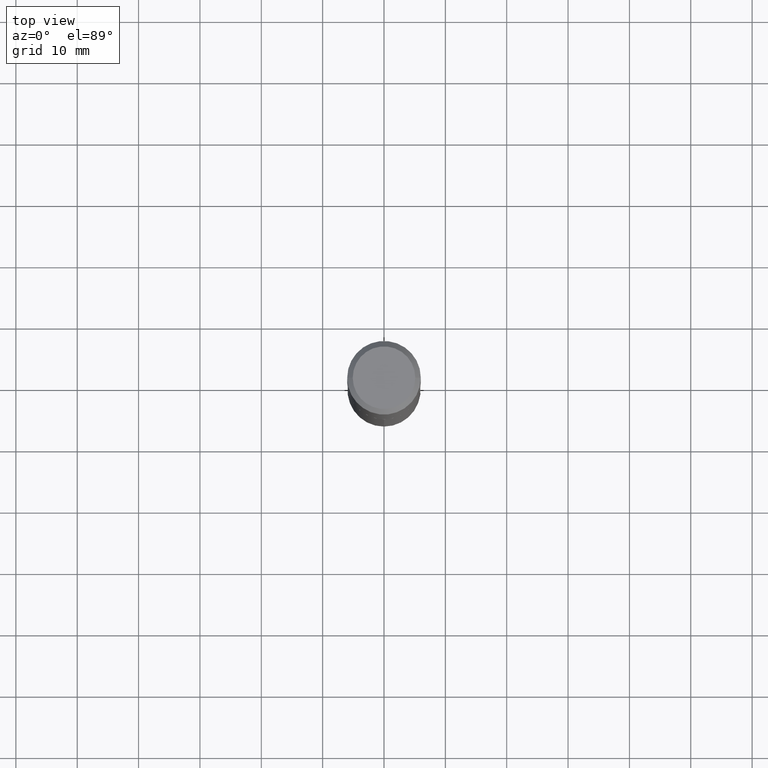
[diagram: clean part render]
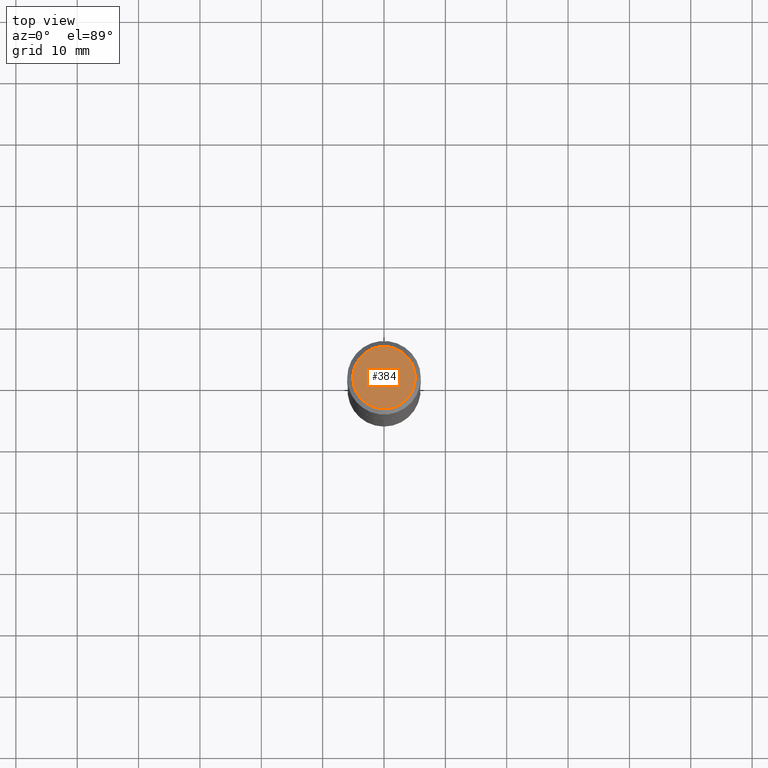
[diagram: same view with one face highlighted and labeled with its STEP entity id]
A machine part, top view. The second image highlights one B-rep face of the part: STEP entity #384.
In plain terms, the highlighted planar face has unit normal (0, -0, -1).
Its self-contained STEP definition (entity closure, byte-faithful):
#17 = ORIENTED_EDGE ( 'NONE', *, *, #175, .T. ) ;
#29 = AXIS2_PLACEMENT_3D ( 'NONE', #344, #233, #234 ) ;
#82 = CARTESIAN_POINT ( 'NONE',  ( -1.001697619218023151E-46, 1.430158722866391908E-32, 4.096137381448114529E-18 ) ) ;
#88 = PLANE ( 'NONE',  #208 ) ;
#110 = AXIS2_PLACEMENT_3D ( 'NONE', #82, #341, #227 ) ;
#117 = CARTESIAN_POINT ( 'NONE',  ( 0.2007700000000000040, -1.560767496960719672E-15, 4.096137381458473721E-18 ) ) ;
#128 = DIRECTION ( 'NONE',  ( -1.000000000000000000, 6.982962677686265922E-15, -4.876176775795935793E-29 ) ) ;
#157 = CARTESIAN_POINT ( 'NONE',  ( -0.2007700000000000040, 1.463821008716677338E-15, 4.096137381438094301E-18 ) ) ;
#175 = EDGE_CURVE ( 'NONE', #431, #253, #400, .T. ) ;
#208 = AXIS2_PLACEMENT_3D ( 'NONE', #247, #471, #128 ) ;
#227 = DIRECTION ( 'NONE',  ( 1.000000000000000000, -6.982962677686266711E-15, 4.876140833081945105E-29 ) ) ;
#229 = EDGE_CURVE ( 'NONE', #253, #431, #407, .T. ) ;
#233 = DIRECTION ( 'NONE',  ( -2.445468806185136597E-29, 3.491481338843145583E-15, 1.000000000000000000 ) ) ;
#234 = DIRECTION ( 'NONE',  ( 1.000000000000000000, -6.982962677686266711E-15, 4.876140833081945105E-29 ) ) ;
#244 = FACE_OUTER_BOUND ( 'NONE', #486, .T. ) ;
#247 = CARTESIAN_POINT ( 'NONE',  ( -5.008488096090115757E-47, 7.150793614331959538E-33, 2.048068690724057264E-18 ) ) ;
#253 = VERTEX_POINT ( 'NONE', #117 ) ;
#255 = ORIENTED_EDGE ( 'NONE', *, *, #229, .T. ) ;
#341 = DIRECTION ( 'NONE',  ( -2.445468806185136597E-29, 3.491481338843145583E-15, 1.000000000000000000 ) ) ;
#344 = CARTESIAN_POINT ( 'NONE',  ( -1.001697619218023151E-46, 1.430158722866391908E-32, 4.096137381448114529E-18 ) ) ;
#384 = ADVANCED_FACE ( 'NONE', ( #244 ), #88, .F. ) ;
#400 = CIRCLE ( 'NONE', #110, 0.2007700000000000040 ) ;
#407 = CIRCLE ( 'NONE', #29, 0.2007700000000000040 ) ;
#431 = VERTEX_POINT ( 'NONE', #157 ) ;
#471 = DIRECTION ( 'NONE',  ( 2.438088387897960049E-29, -3.491481338843145188E-15, -1.000000000000000000 ) ) ;
#486 = EDGE_LOOP ( 'NONE', ( #17, #255 ) ) ;